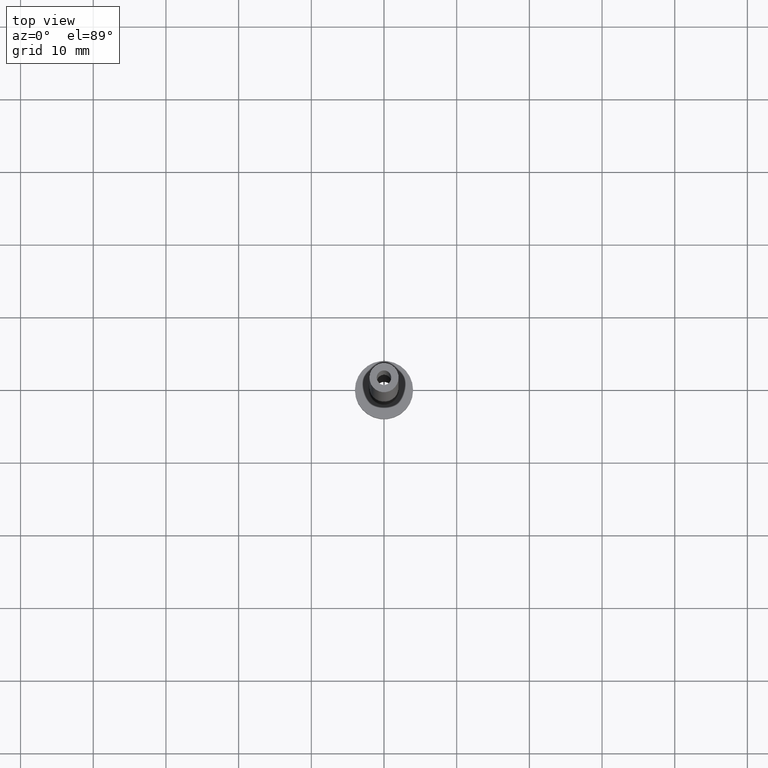
[diagram: clean part render]
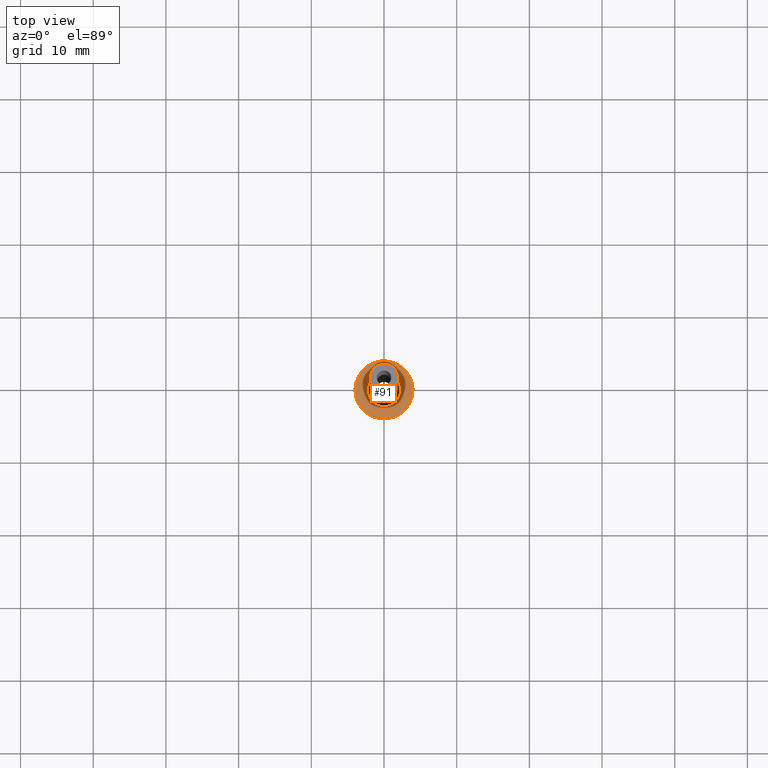
[diagram: same view with one face highlighted and labeled with its STEP entity id]
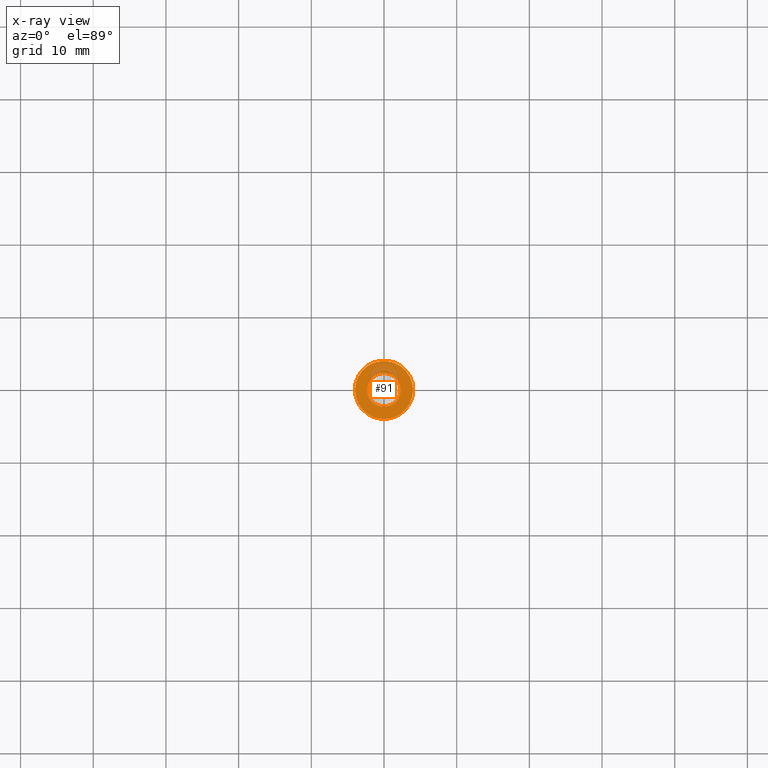
[diagram: x-ray of the same camera — body ghosted, the highlighted face saturated]
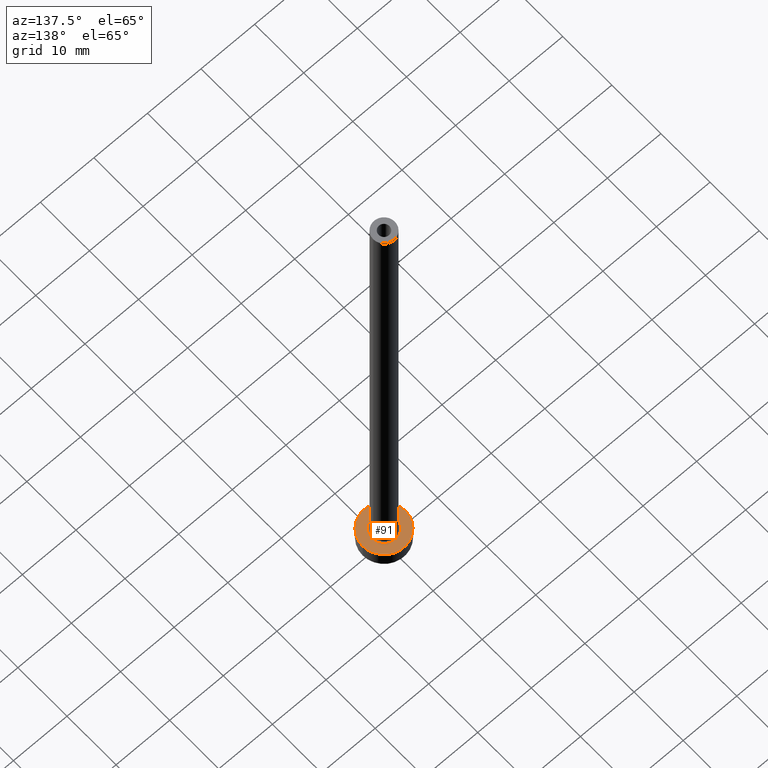
[diagram: same view with one face highlighted and labeled with its STEP entity id]
A machine part, top view. The second image highlights one B-rep face of the part: STEP entity #91.
The next image is the same camera in x-ray: the body ghosted, the highlighted face saturated — about 16% of this face is hidden behind the body in this view.
A second angle (auxiliary view) of the same face is appended — the face is thin or edge-on in the first view.
In plain terms, the highlighted planar face has unit normal (0, 0, 1).
Its self-contained STEP definition (entity closure, byte-faithful):
#10 = EDGE_CURVE ( 'NONE', #211, #157, #228, .T. ) ;
#45 = CIRCLE ( 'NONE', #320, 4.000000000000000000 ) ;
#52 = VERTEX_POINT ( 'NONE', #88 ) ;
#66 = AXIS2_PLACEMENT_3D ( 'NONE', #454, #138, #124 ) ;
#87 = EDGE_LOOP ( 'NONE', ( #252, #332 ) ) ;
#88 = CARTESIAN_POINT ( 'NONE',  ( -4.000000000000000000, 0.000000000000000000, 3.000000000000000000 ) ) ;
#91 = ADVANCED_FACE ( 'NONE', ( #292, #315 ), #391, .T. ) ;
#94 = CARTESIAN_POINT ( 'NONE',  ( 0.000000000000000000, 0.000000000000000000, 3.000000000000000000 ) ) ;
#124 = DIRECTION ( 'NONE',  ( 1.000000000000000000, 0.000000000000000000, 0.000000000000000000 ) ) ;
#127 = CARTESIAN_POINT ( 'NONE',  ( 2.299999999999999822, 0.000000000000000000, 2.999999999999998668 ) ) ;
#138 = DIRECTION ( 'NONE',  ( -0.000000000000000000, -0.000000000000000000, -1.000000000000000000 ) ) ;
#157 = VERTEX_POINT ( 'NONE', #127 ) ;
#180 = EDGE_CURVE ( 'NONE', #157, #211, #185, .T. ) ;
#185 = CIRCLE ( 'NONE', #66, 2.299999999999999822 ) ;
#186 = AXIS2_PLACEMENT_3D ( 'NONE', #261, #300, #443 ) ;
#191 = EDGE_LOOP ( 'NONE', ( #387, #316 ) ) ;
#211 = VERTEX_POINT ( 'NONE', #437 ) ;
#225 = EDGE_CURVE ( 'NONE', #52, #237, #45, .T. ) ;
#228 = CIRCLE ( 'NONE', #406, 2.299999999999999822 ) ;
#237 = VERTEX_POINT ( 'NONE', #392 ) ;
#238 = DIRECTION ( 'NONE',  ( 1.000000000000000000, 0.000000000000000000, 0.000000000000000000 ) ) ;
#244 = DIRECTION ( 'NONE',  ( 0.000000000000000000, 0.000000000000000000, 1.000000000000000000 ) ) ;
#252 = ORIENTED_EDGE ( 'NONE', *, *, #180, .T. ) ;
#261 = CARTESIAN_POINT ( 'NONE',  ( 0.000000000000000000, 0.000000000000000000, 3.000000000000000000 ) ) ;
#266 = AXIS2_PLACEMENT_3D ( 'NONE', #435, #395, #281 ) ;
#281 = DIRECTION ( 'NONE',  ( 1.000000000000000000, 0.000000000000000000, -0.000000000000000000 ) ) ;
#292 = FACE_BOUND ( 'NONE', #87, .T. ) ;
#299 = DIRECTION ( 'NONE',  ( 1.000000000000000000, 0.000000000000000000, 0.000000000000000000 ) ) ;
#300 = DIRECTION ( 'NONE',  ( 0.000000000000000000, 0.000000000000000000, 1.000000000000000000 ) ) ;
#315 = FACE_OUTER_BOUND ( 'NONE', #191, .T. ) ;
#316 = ORIENTED_EDGE ( 'NONE', *, *, #344, .T. ) ;
#320 = AXIS2_PLACEMENT_3D ( 'NONE', #94, #244, #238 ) ;
#323 = CIRCLE ( 'NONE', #186, 4.000000000000000000 ) ;
#332 = ORIENTED_EDGE ( 'NONE', *, *, #10, .T. ) ;
#344 = EDGE_CURVE ( 'NONE', #237, #52, #323, .T. ) ;
#387 = ORIENTED_EDGE ( 'NONE', *, *, #225, .T. ) ;
#391 = PLANE ( 'NONE',  #266 ) ;
#392 = CARTESIAN_POINT ( 'NONE',  ( 4.000000000000000000, 4.898587196589412829E-16, 3.000000000000000000 ) ) ;
#395 = DIRECTION ( 'NONE',  ( 0.000000000000000000, 0.000000000000000000, 1.000000000000000000 ) ) ;
#404 = CARTESIAN_POINT ( 'NONE',  ( 0.000000000000000000, 0.000000000000000000, 3.000000000000000000 ) ) ;
#406 = AXIS2_PLACEMENT_3D ( 'NONE', #404, #409, #299 ) ;
#409 = DIRECTION ( 'NONE',  ( -0.000000000000000000, -0.000000000000000000, -1.000000000000000000 ) ) ;
#435 = CARTESIAN_POINT ( 'NONE',  ( 0.000000000000000000, 0.000000000000000000, 3.000000000000000000 ) ) ;
#437 = CARTESIAN_POINT ( 'NONE',  ( -2.299999999999999822, 2.816687638038912056E-16, 2.999999999999998668 ) ) ;
#443 = DIRECTION ( 'NONE',  ( 1.000000000000000000, 0.000000000000000000, 0.000000000000000000 ) ) ;
#454 = CARTESIAN_POINT ( 'NONE',  ( 0.000000000000000000, 0.000000000000000000, 3.000000000000000000 ) ) ;